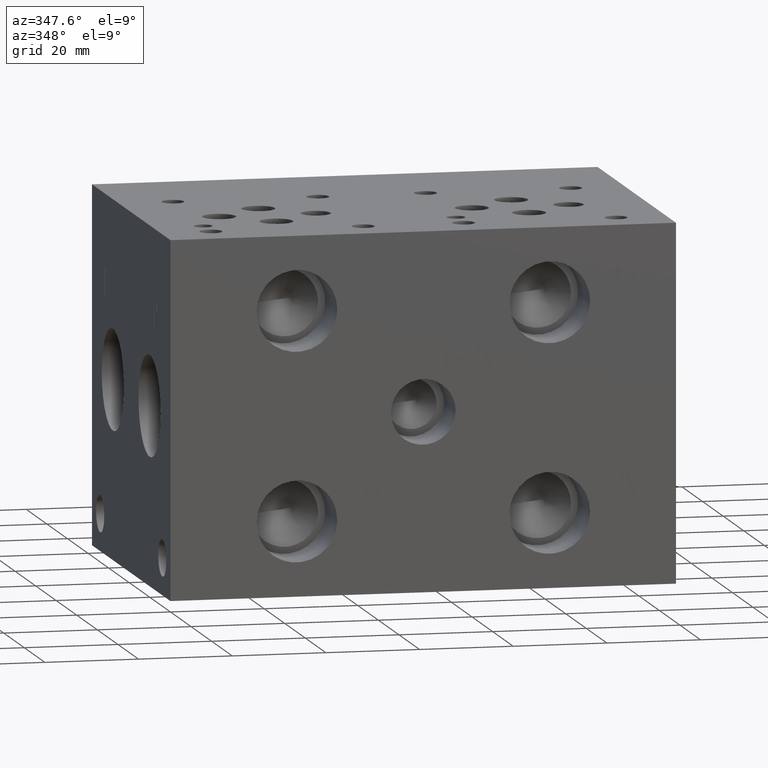
[diagram: clean part render]
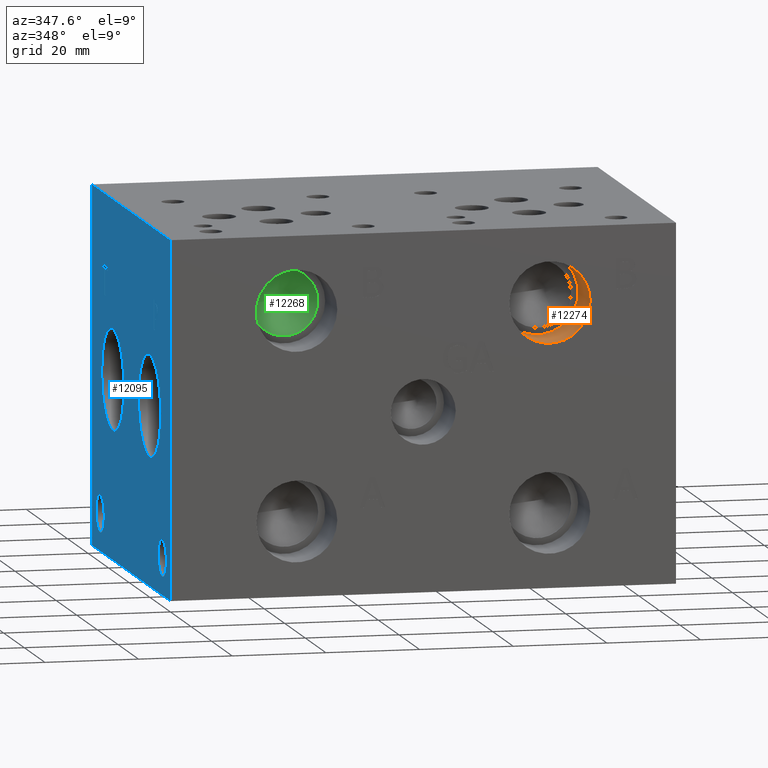
[diagram: same view with three faces highlighted in distinct colors, each labeled with its STEP entity id]
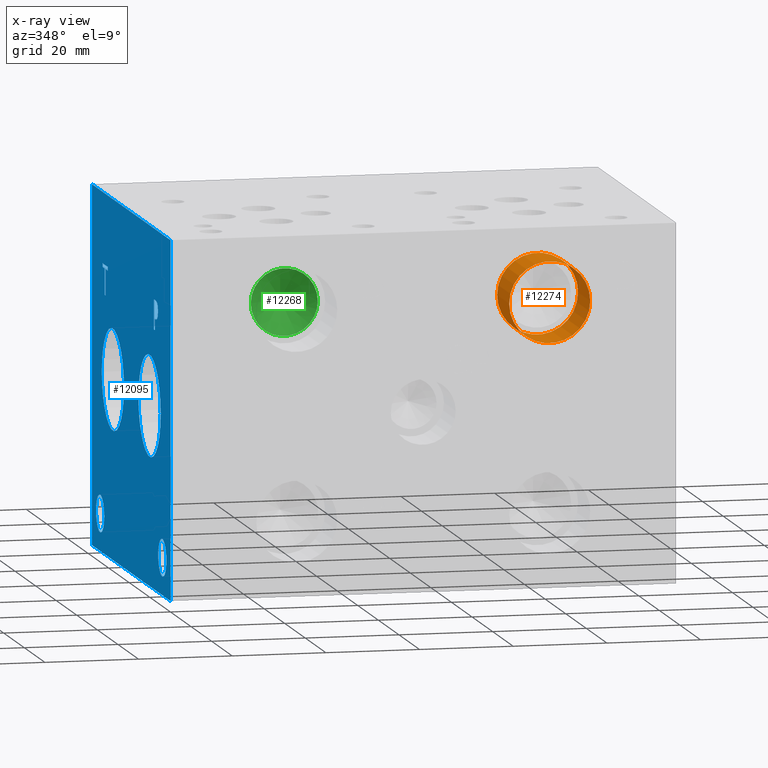
[diagram: x-ray of the same camera — body ghosted, the three highlighted faces saturated]
A machine part, auxiliary view with three faces highlighted in distinct colors.
The next image is the same camera in x-ray (body ghosted, the three faces saturated) — at least one of them is partly hidden behind the body in this view.
Their STEP definitions:

[orange] entity #12274 — the highlighted cylindrical surface (bore or boss wall) has radius 8.6487 mm, axis along (0, -1, 0).
#84=CYLINDRICAL_SURFACE('',#12868,8.6487);
#138=CIRCLE('',#12648,8.6487);
#139=CIRCLE('',#12649,8.6487);
#232=CIRCLE('',#12865,8.6487);
#233=CIRCLE('',#12866,8.6487);
#1520=FACE_OUTER_BOUND('',#2226,.T.);
#2226=EDGE_LOOP('',(#10511,#10512,#10513,#10514,#10515,#10516));
#3404=LINE('',#20929,#4538);
#4538=VECTOR('',#15152,8.6487);
#5374=VERTEX_POINT('',#19598);
#5375=VERTEX_POINT('',#19599);
#5634=VERTEX_POINT('',#20922);
#5635=VERTEX_POINT('',#20923);
#6914=EDGE_CURVE('',#5374,#5375,#138,.T.);
#6915=EDGE_CURVE('',#5375,#5374,#139,.T.);
#7303=EDGE_CURVE('',#5634,#5635,#232,.T.);
#7304=EDGE_CURVE('',#5635,#5634,#233,.T.);
#7306=EDGE_CURVE('',#5375,#5635,#3404,.T.);
#10511=ORIENTED_EDGE('',*,*,#6914,.F.);
#10512=ORIENTED_EDGE('',*,*,#6915,.F.);
#10513=ORIENTED_EDGE('',*,*,#7306,.T.);
#10514=ORIENTED_EDGE('',*,*,#7303,.F.);
#10515=ORIENTED_EDGE('',*,*,#7304,.F.);
#10516=ORIENTED_EDGE('',*,*,#7306,.F.);
#12274=ADVANCED_FACE('',(#1520),#84,.F.);
#12648=AXIS2_PLACEMENT_3D('',#19600,#14487,#14488);
#12649=AXIS2_PLACEMENT_3D('',#19601,#14489,#14490);
#12865=AXIS2_PLACEMENT_3D('',#20924,#15144,#15145);
#12866=AXIS2_PLACEMENT_3D('',#20925,#15146,#15147);
#12868=AXIS2_PLACEMENT_3D('',#20928,#15150,#15151);
#14487=DIRECTION('center_axis',(0.,1.,0.));
#14488=DIRECTION('ref_axis',(1.,0.,0.));
#14489=DIRECTION('center_axis',(0.,1.,0.));
#14490=DIRECTION('ref_axis',(1.,0.,0.));
#15144=DIRECTION('center_axis',(0.,-1.,0.));
#15145=DIRECTION('ref_axis',(1.,0.,0.));
#15146=DIRECTION('center_axis',(0.,-1.,0.));
#15147=DIRECTION('ref_axis',(1.,0.,0.));
#15150=DIRECTION('center_axis',(0.,-1.,0.));
#15151=DIRECTION('ref_axis',(1.,0.,0.));
#15152=DIRECTION('',(0.,1.,0.));
#19598=CARTESIAN_POINT('',(89.6239,0.,60.325));
#19599=CARTESIAN_POINT('',(72.3265,0.,60.325));
#19600=CARTESIAN_POINT('Origin',(80.9752,0.,60.325));
#19601=CARTESIAN_POINT('Origin',(80.9752,0.,60.325));
#20922=CARTESIAN_POINT('',(89.6239,11.7348,60.325));
#20923=CARTESIAN_POINT('',(72.3265,11.7348,60.325));
#20924=CARTESIAN_POINT('Origin',(80.9752,11.7348,60.325));
#20925=CARTESIAN_POINT('Origin',(80.9752,11.7348,60.325));
#20928=CARTESIAN_POINT('Origin',(80.9752,5.8674,60.325));
#20929=CARTESIAN_POINT('',(72.3265,5.8674,60.325));

[blue] entity #12095 — the highlighted planar face has unit normal (-1, 0, 0).
#126=CIRCLE('',#12623,3.9624);
#127=CIRCLE('',#12624,3.9624);
#128=CIRCLE('',#12625,3.9624);
#129=CIRCLE('',#12626,3.9624);
#130=CIRCLE('',#12627,10.795);
#131=CIRCLE('',#12628,10.795);
#132=CIRCLE('',#12629,10.795);
#133=CIRCLE('',#12630,10.795);
#378=FACE_BOUND('',#2011,.T.);
#379=FACE_BOUND('',#2012,.T.);
#380=FACE_BOUND('',#2013,.T.);
#381=FACE_BOUND('',#2014,.T.);
#382=FACE_BOUND('',#2015,.T.);
#383=FACE_BOUND('',#2016,.T.);
#693=B_SPLINE_CURVE_WITH_KNOTS('',2,(#19309,#19310,#19311,#19312),
 .UNSPECIFIED.,.F.,.F.,(3,1,3),(0.,1.,2.),.UNSPECIFIED.);
#695=B_SPLINE_CURVE_WITH_KNOTS('',2,(#19330,#19331,#19332,#19333),
 .UNSPECIFIED.,.F.,.F.,(3,1,3),(0.,1.,2.),.UNSPECIFIED.);
#697=B_SPLINE_CURVE_WITH_KNOTS('',2,(#19379,#19380,#19381,#19382),
 .UNSPECIFIED.,.F.,.F.,(3,1,3),(0.,1.,2.),.UNSPECIFIED.);
#699=B_SPLINE_CURVE_WITH_KNOTS('',2,(#19397,#19398,#19399,#19400),
 .UNSPECIFIED.,.F.,.F.,(3,1,3),(0.,1.,2.),.UNSPECIFIED.);
#1341=FACE_OUTER_BOUND('',#2010,.T.);
#2010=EDGE_LOOP('',(#9560,#9561,#9562,#9563));
#2011=EDGE_LOOP('',(#9564,#9565,#9566,#9567,#9568,#9569,#9570,#9571));
#2012=EDGE_LOOP('',(#9572,#9573));
#2013=EDGE_LOOP('',(#9574,#9575));
#2014=EDGE_LOOP('',(#9576,#9577));
#2015=EDGE_LOOP('',(#9578,#9579));
#2016=EDGE_LOOP('',(#9580,#9581,#9582,#9583,#9584,#9585,#9586,#9587,#9588));
#2632=LINE('',#17970,#3766);
#3071=LINE('',#19159,#4205);
#3075=LINE('',#19167,#4209);
#3078=LINE('',#19173,#4212);
#3081=LINE('',#19179,#4215);
#3084=LINE('',#19185,#4218);
#3087=LINE('',#19191,#4221);
#3090=LINE('',#19197,#4224);
#3093=LINE('',#19202,#4227);
#3111=LINE('',#19342,#4245);
#3114=LINE('',#19348,#4248);
#3117=LINE('',#19354,#4251);
#3120=LINE('',#19360,#4254);
#3123=LINE('',#19366,#4257);
#3127=LINE('',#19408,#4261);
#3128=LINE('',#19410,#4262);
#3129=LINE('',#19411,#4263);
#3766=VECTOR('',#13514,10.);
#4205=VECTOR('',#14291,10.);
#4209=VECTOR('',#14297,10.);
#4212=VECTOR('',#14302,10.);
#4215=VECTOR('',#14307,10.);
#4218=VECTOR('',#14312,10.);
#4221=VECTOR('',#14317,10.);
#4224=VECTOR('',#14322,10.);
#4227=VECTOR('',#14327,10.);
#4245=VECTOR('',#14355,10.);
#4248=VECTOR('',#14360,10.);
#4251=VECTOR('',#14365,10.);
#4254=VECTOR('',#14370,10.);
#4257=VECTOR('',#14375,10.);
#4261=VECTOR('',#14383,10.);
#4262=VECTOR('',#14384,10.);
#4263=VECTOR('',#14385,10.);
#4937=VERTEX_POINT('',#17967);
#4938=VERTEX_POINT('',#17969);
#5262=VERTEX_POINT('',#19157);
#5263=VERTEX_POINT('',#19158);
#5266=VERTEX_POINT('',#19166);
#5268=VERTEX_POINT('',#19172);
#5270=VERTEX_POINT('',#19178);
#5272=VERTEX_POINT('',#19184);
#5274=VERTEX_POINT('',#19190);
#5276=VERTEX_POINT('',#19196);
#5292=VERTEX_POINT('',#19307);
#5293=VERTEX_POINT('',#19308);
#5296=VERTEX_POINT('',#19329);
#5298=VERTEX_POINT('',#19341);
#5300=VERTEX_POINT('',#19347);
#5302=VERTEX_POINT('',#19353);
#5304=VERTEX_POINT('',#19359);
#5306=VERTEX_POINT('',#19365);
#5308=VERTEX_POINT('',#19378);
#5310=VERTEX_POINT('',#19407);
#5311=VERTEX_POINT('',#19409);
#5312=VERTEX_POINT('',#19412);
#5313=VERTEX_POINT('',#19413);
#5314=VERTEX_POINT('',#19416);
#5315=VERTEX_POINT('',#19417);
#5316=VERTEX_POINT('',#19420);
#5317=VERTEX_POINT('',#19421);
#5318=VERTEX_POINT('',#19424);
#5319=VERTEX_POINT('',#19425);
#6283=EDGE_CURVE('',#4937,#4938,#2632,.T.);
#6764=EDGE_CURVE('',#5262,#5263,#3071,.T.);
#6768=EDGE_CURVE('',#5266,#5262,#3075,.T.);
#6771=EDGE_CURVE('',#5268,#5266,#3078,.T.);
#6774=EDGE_CURVE('',#5270,#5268,#3081,.T.);
#6777=EDGE_CURVE('',#5272,#5270,#3084,.T.);
#6780=EDGE_CURVE('',#5274,#5272,#3087,.T.);
#6783=EDGE_CURVE('',#5276,#5274,#3090,.T.);
#6786=EDGE_CURVE('',#5263,#5276,#3093,.T.);
#6809=EDGE_CURVE('',#5292,#5293,#693,.T.);
#6813=EDGE_CURVE('',#5296,#5292,#695,.T.);
#6816=EDGE_CURVE('',#5298,#5296,#3111,.T.);
#6819=EDGE_CURVE('',#5300,#5298,#3114,.T.);
#6822=EDGE_CURVE('',#5302,#5300,#3117,.T.);
#6825=EDGE_CURVE('',#5304,#5302,#3120,.T.);
#6828=EDGE_CURVE('',#5306,#5304,#3123,.T.);
#6831=EDGE_CURVE('',#5308,#5306,#697,.T.);
#6834=EDGE_CURVE('',#5293,#5308,#699,.T.);
#6836=EDGE_CURVE('',#4937,#5310,#3127,.T.);
#6837=EDGE_CURVE('',#5310,#5311,#3128,.T.);
#6838=EDGE_CURVE('',#4938,#5311,#3129,.T.);
#6839=EDGE_CURVE('',#5312,#5313,#126,.T.);
#6840=EDGE_CURVE('',#5313,#5312,#127,.T.);
#6841=EDGE_CURVE('',#5314,#5315,#128,.T.);
#6842=EDGE_CURVE('',#5315,#5314,#129,.T.);
#6843=EDGE_CURVE('',#5316,#5317,#130,.T.);
#6844=EDGE_CURVE('',#5317,#5316,#131,.T.);
#6845=EDGE_CURVE('',#5318,#5319,#132,.T.);
#6846=EDGE_CURVE('',#5319,#5318,#133,.T.);
#9560=ORIENTED_EDGE('',*,*,#6836,.T.);
#9561=ORIENTED_EDGE('',*,*,#6837,.T.);
#9562=ORIENTED_EDGE('',*,*,#6838,.F.);
#9563=ORIENTED_EDGE('',*,*,#6283,.F.);
#9564=ORIENTED_EDGE('',*,*,#6764,.T.);
#9565=ORIENTED_EDGE('',*,*,#6786,.T.);
#9566=ORIENTED_EDGE('',*,*,#6783,.T.);
#9567=ORIENTED_EDGE('',*,*,#6780,.T.);
#9568=ORIENTED_EDGE('',*,*,#6777,.T.);
#9569=ORIENTED_EDGE('',*,*,#6774,.T.);
#9570=ORIENTED_EDGE('',*,*,#6771,.T.);
#9571=ORIENTED_EDGE('',*,*,#6768,.T.);
#9572=ORIENTED_EDGE('',*,*,#6839,.T.);
#9573=ORIENTED_EDGE('',*,*,#6840,.T.);
#9574=ORIENTED_EDGE('',*,*,#6841,.T.);
#9575=ORIENTED_EDGE('',*,*,#6842,.T.);
#9576=ORIENTED_EDGE('',*,*,#6843,.T.);
#9577=ORIENTED_EDGE('',*,*,#6844,.T.);
#9578=ORIENTED_EDGE('',*,*,#6845,.T.);
#9579=ORIENTED_EDGE('',*,*,#6846,.T.);
#9580=ORIENTED_EDGE('',*,*,#6809,.T.);
#9581=ORIENTED_EDGE('',*,*,#6834,.T.);
#9582=ORIENTED_EDGE('',*,*,#6831,.T.);
#9583=ORIENTED_EDGE('',*,*,#6828,.T.);
#9584=ORIENTED_EDGE('',*,*,#6825,.T.);
#9585=ORIENTED_EDGE('',*,*,#6822,.T.);
#9586=ORIENTED_EDGE('',*,*,#6819,.T.);
#9587=ORIENTED_EDGE('',*,*,#6816,.T.);
#9588=ORIENTED_EDGE('',*,*,#6813,.T.);
#11122=PLANE('',#12622);
#12095=ADVANCED_FACE('',(#1341,#378,#379,#380,#381,#382,#383),#11122,.T.);
#12622=AXIS2_PLACEMENT_3D('',#19406,#14381,#14382);
#12623=AXIS2_PLACEMENT_3D('',#19414,#14386,#14387);
#12624=AXIS2_PLACEMENT_3D('',#19415,#14388,#14389);
#12625=AXIS2_PLACEMENT_3D('',#19418,#14390,#14391);
#12626=AXIS2_PLACEMENT_3D('',#19419,#14392,#14393);
#12627=AXIS2_PLACEMENT_3D('',#19422,#14394,#14395);
#12628=AXIS2_PLACEMENT_3D('',#19423,#14396,#14397);
#12629=AXIS2_PLACEMENT_3D('',#19426,#14398,#14399);
#12630=AXIS2_PLACEMENT_3D('',#19427,#14400,#14401);
#13514=DIRECTION('',(0.,0.,1.));
#14291=DIRECTION('',(0.,1.,1.05244112384329E-14));
#14297=DIRECTION('',(0.,3.17280044688052E-15,-1.));
#14302=DIRECTION('',(0.,1.,4.16909044227778E-15));
#14307=DIRECTION('',(0.,0.,-1.));
#14312=DIRECTION('',(0.,-1.,-3.47984565141734E-15));
#14317=DIRECTION('',(0.,0.,1.));
#14322=DIRECTION('',(0.,1.,0.));
#14327=DIRECTION('',(0.,-3.17280044688052E-15,1.));
#14355=DIRECTION('',(0.,-1.,-5.56775304226775E-15));
#14360=DIRECTION('',(0.,-3.14708893596576E-15,1.));
#14365=DIRECTION('',(0.,1.,0.));
#14370=DIRECTION('',(0.,2.8141360485375E-15,-1.));
#14375=DIRECTION('',(0.,1.,1.24172909575755E-14));
#14381=DIRECTION('center_axis',(-1.,0.,0.));
#14382=DIRECTION('ref_axis',(0.,-1.,0.));
#14383=DIRECTION('',(0.,-1.,0.));
#14384=DIRECTION('',(0.,0.,1.));
#14385=DIRECTION('',(0.,-1.,0.));
#14386=DIRECTION('center_axis',(1.,0.,0.));
#14387=DIRECTION('ref_axis',(0.,1.,0.));
#14388=DIRECTION('center_axis',(1.,0.,0.));
#14389=DIRECTION('ref_axis',(0.,1.,0.));
#14390=DIRECTION('center_axis',(1.,0.,0.));
#14391=DIRECTION('ref_axis',(0.,1.,0.));
#14392=DIRECTION('center_axis',(1.,0.,0.));
#14393=DIRECTION('ref_axis',(0.,1.,0.));
#14394=DIRECTION('center_axis',(1.,0.,0.));
#14395=DIRECTION('ref_axis',(0.,1.,0.));
#14396=DIRECTION('center_axis',(1.,0.,0.));
#14397=DIRECTION('ref_axis',(0.,1.,0.));
#14398=DIRECTION('center_axis',(1.,0.,0.));
#14399=DIRECTION('ref_axis',(0.,1.,0.));
#14400=DIRECTION('center_axis',(1.,0.,0.));
#14401=DIRECTION('ref_axis',(0.,1.,0.));
#17967=CARTESIAN_POINT('',(0.,76.2,0.));
#17969=CARTESIAN_POINT('',(0.,76.2,76.2));
#17970=CARTESIAN_POINT('',(0.,76.2,0.));
#19157=CARTESIAN_POINT('',(0.,62.912084728547,54.76875));
#19158=CARTESIAN_POINT('',(0.,63.7560069200865,54.76875));
#19159=CARTESIAN_POINT('',(0.,69.5560423642732,54.7687500000001));
#19166=CARTESIAN_POINT('',(0.,62.912084728547,60.3674533194815));
#19167=CARTESIAN_POINT('',(0.,62.9120847285471,30.1837266597407));
#19172=CARTESIAN_POINT('',(0.,60.7816957816119,60.3674533194815));
#19173=CARTESIAN_POINT('',(0.,68.4908478908058,60.3674533194816));
#19178=CARTESIAN_POINT('',(0.,60.7816957816119,61.1187499046326));
#19179=CARTESIAN_POINT('',(0.,60.7816957816119,30.5593749523163));
#19184=CARTESIAN_POINT('',(0.,65.8863958670216,61.1187499046326));
#19185=CARTESIAN_POINT('',(0.,71.0431979335107,61.1187499046326));
#19190=CARTESIAN_POINT('',(0.,65.8863958670216,60.3674533194815));
#19191=CARTESIAN_POINT('',(0.,65.8863958670216,30.1837266597408));
#19196=CARTESIAN_POINT('',(0.,63.7560069200865,60.3674533194815));
#19197=CARTESIAN_POINT('',(0.,69.9780034600433,60.3674533194815));
#19202=CARTESIAN_POINT('',(0.,63.7560069200866,27.384375));
#19307=CARTESIAN_POINT('',(0.,12.7872327976406,60.8177681439707));
#19308=CARTESIAN_POINT('',(0.,12.030790345468,59.2997373726039));
#19309=CARTESIAN_POINT('Ctrl Pts',(0.,12.7872327976406,60.8177681439707));
#19310=CARTESIAN_POINT('Ctrl Pts',(0.,12.4321679731514,60.5759123939563));
#19311=CARTESIAN_POINT('Ctrl Pts',(0.,12.030790345468,59.8297616758269));
#19312=CARTESIAN_POINT('Ctrl Pts',(0.,12.030790345468,59.2997373726039));
#19329=CARTESIAN_POINT('',(0.,14.4493478456117,61.2139999046325));
#19330=CARTESIAN_POINT('Ctrl Pts',(0.,14.4493478456117,61.2139999046325));
#19331=CARTESIAN_POINT('Ctrl Pts',(0.,13.8833024732376,61.2139999046325));
#19332=CARTESIAN_POINT('Ctrl Pts',(0.,13.0908389519139,61.0287486918556));
#19333=CARTESIAN_POINT('Ctrl Pts',(0.,12.7872327976406,60.8177681439707));
#19341=CARTESIAN_POINT('',(0.,16.0445666223022,61.2139999046326));
#19342=CARTESIAN_POINT('',(0.,46.1222833111509,61.2139999046327));
#19347=CARTESIAN_POINT('',(0.,16.0445666223022,54.864));
#19348=CARTESIAN_POINT('',(0.,16.0445666223023,27.4319999999999));
#19353=CARTESIAN_POINT('',(0.,15.2006444307627,54.864));
#19354=CARTESIAN_POINT('',(0.,45.7003222153814,54.864));
#19359=CARTESIAN_POINT('',(0.,15.2006444307627,57.2310988299279));
#19360=CARTESIAN_POINT('',(0.,15.2006444307628,28.6155494149638));
#19365=CARTESIAN_POINT('',(0.,14.4853689147628,57.2310988299278));
#19366=CARTESIAN_POINT('',(0.,45.342684457381,57.2310988299282));
#19378=CARTESIAN_POINT('',(0.,12.5865439837989,57.8897698086904));
#19379=CARTESIAN_POINT('Ctrl Pts',(0.,12.5865439837989,57.8897698086904));
#19380=CARTESIAN_POINT('Ctrl Pts',(0.,12.9158794731802,57.5655801863307));
#19381=CARTESIAN_POINT('Ctrl Pts',(0.,13.8061144679139,57.2310988299278));
#19382=CARTESIAN_POINT('Ctrl Pts',(0.,14.4853689147628,57.2310988299278));
#19397=CARTESIAN_POINT('Ctrl Pts',(0.,12.030790345468,59.2997373726039));
#19398=CARTESIAN_POINT('Ctrl Pts',(0.,12.030790345468,58.8880680108773));
#19399=CARTESIAN_POINT('Ctrl Pts',(0.,12.3241047656982,58.1470631597695));
#19400=CARTESIAN_POINT('Ctrl Pts',(0.,12.5865439837989,57.8897698086904));
#19406=CARTESIAN_POINT('Origin',(0.,76.2,0.));
#19407=CARTESIAN_POINT('',(0.,0.,0.));
#19408=CARTESIAN_POINT('',(0.,76.2,0.));
#19409=CARTESIAN_POINT('',(0.,0.,76.2));
#19410=CARTESIAN_POINT('',(0.,0.,0.));
#19411=CARTESIAN_POINT('',(0.,76.2,76.2));
#19412=CARTESIAN_POINT('',(0.,11.8872,7.92480000000001));
#19413=CARTESIAN_POINT('',(0.,3.9624,7.92480000000001));
#19414=CARTESIAN_POINT('Origin',(0.,7.9248,7.92480000000001));
#19415=CARTESIAN_POINT('Origin',(0.,7.9248,7.92480000000001));
#19416=CARTESIAN_POINT('',(0.,72.2376,7.92480000000001));
#19417=CARTESIAN_POINT('',(0.,64.3128,7.92480000000001));
#19418=CARTESIAN_POINT('Origin',(0.,68.2752,7.92480000000001));
#19419=CARTESIAN_POINT('Origin',(0.,68.2752,7.92480000000001));
#19420=CARTESIAN_POINT('',(0.,66.7512,38.1));
#19421=CARTESIAN_POINT('',(0.,45.1612,38.1));
#19422=CARTESIAN_POINT('Origin',(0.,55.9562,38.1));
#19423=CARTESIAN_POINT('Origin',(0.,55.9562,38.1));
#19424=CARTESIAN_POINT('',(0.,31.0388,38.1));
#19425=CARTESIAN_POINT('',(0.,9.4488,38.1));
#19426=CARTESIAN_POINT('Origin',(0.,20.2438,38.1));
#19427=CARTESIAN_POINT('Origin',(0.,20.2438,38.1));

[green] entity #12268 — the highlighted conical surface has half-angle 60 deg.
#32=CONICAL_SURFACE('',#12852,3.57505,1.0471975511966);
#225=CIRCLE('',#12853,7.1501);
#226=CIRCLE('',#12854,7.1501);
#1514=FACE_OUTER_BOUND('',#2218,.T.);
#2218=EDGE_LOOP('',(#10486,#10487,#10488,#10489));
#3400=LINE('',#20901,#4534);
#4534=VECTOR('',#15118,3.57505);
#5625=VERTEX_POINT('',#20897);
#5626=VERTEX_POINT('',#20898);
#5627=VERTEX_POINT('',#20900);
#7292=EDGE_CURVE('',#5625,#5626,#225,.T.);
#7293=EDGE_CURVE('',#5626,#5627,#3400,.T.);
#7294=EDGE_CURVE('',#5626,#5625,#226,.T.);
#10486=ORIENTED_EDGE('',*,*,#7292,.T.);
#10487=ORIENTED_EDGE('',*,*,#7293,.T.);
#10488=ORIENTED_EDGE('',*,*,#7293,.F.);
#10489=ORIENTED_EDGE('',*,*,#7294,.T.);
#12268=ADVANCED_FACE('',(#1514),#32,.F.);
#12852=AXIS2_PLACEMENT_3D('',#20896,#15114,#15115);
#12853=AXIS2_PLACEMENT_3D('',#20899,#15116,#15117);
#12854=AXIS2_PLACEMENT_3D('',#20902,#15119,#15120);
#15114=DIRECTION('center_axis',(0.,-1.,0.));
#15115=DIRECTION('ref_axis',(1.,0.,0.));
#15116=DIRECTION('center_axis',(0.,-1.,0.));
#15117=DIRECTION('ref_axis',(1.,0.,0.));
#15118=DIRECTION('',(0.866025403784439,0.5,1.06057523872491E-16));
#15119=DIRECTION('center_axis',(0.,-1.,0.));
#15120=DIRECTION('ref_axis',(1.,0.,0.));
#20896=CARTESIAN_POINT('Origin',(26.9748,14.2116660798664,60.325));
#20897=CARTESIAN_POINT('',(34.1249,12.14761,60.325));
#20898=CARTESIAN_POINT('',(19.8247,12.14761,60.325));
#20899=CARTESIAN_POINT('Origin',(26.9748,12.14761,60.325));
#20900=CARTESIAN_POINT('',(26.9748,16.2757221597327,60.325));
#20901=CARTESIAN_POINT('',(23.39975,14.2116660798664,60.325));
#20902=CARTESIAN_POINT('Origin',(26.9748,12.14761,60.325));